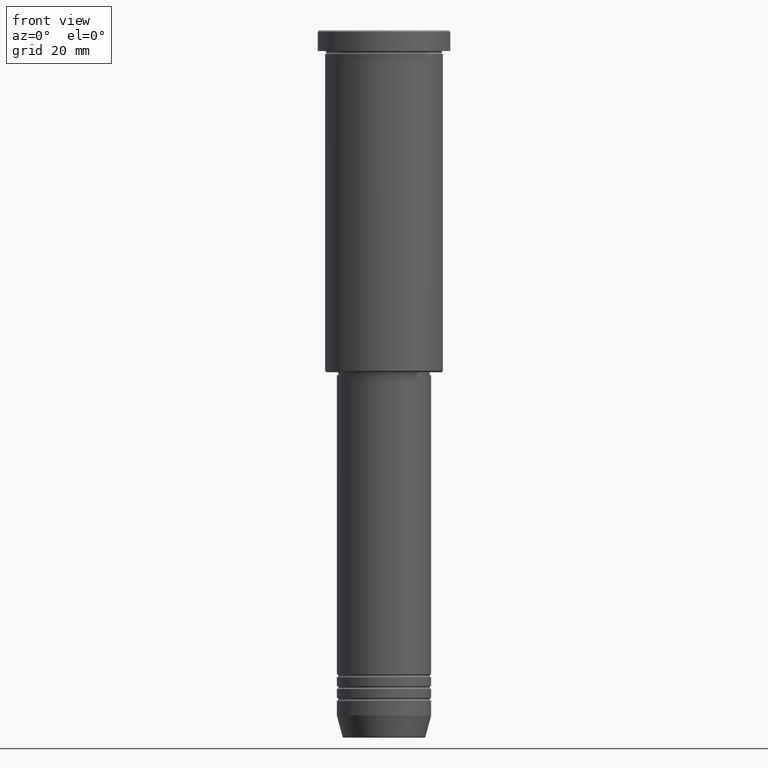
[diagram: clean part render]
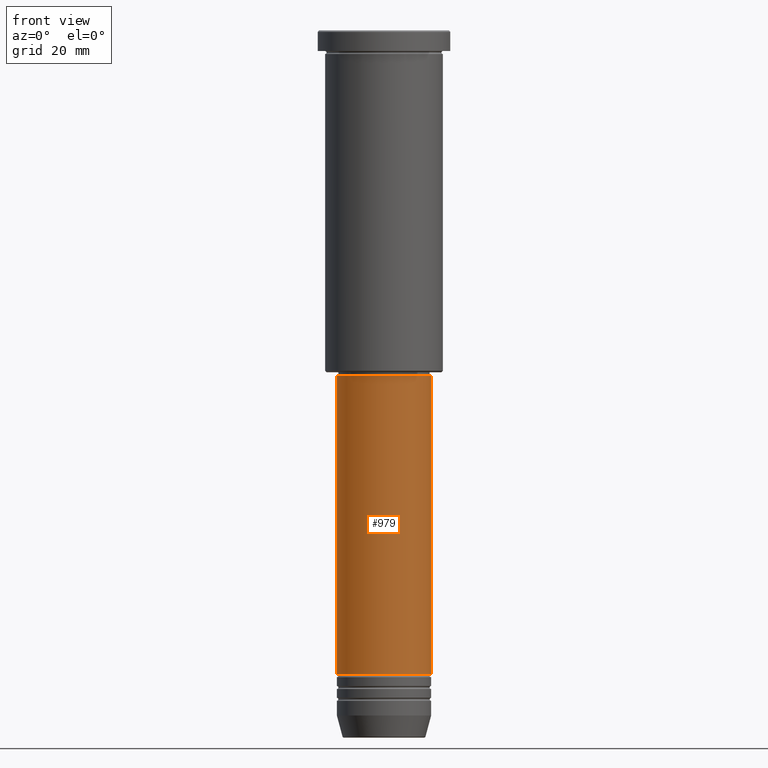
[diagram: same view with one face highlighted and labeled with its STEP entity id]
A machine part, front view. The second image highlights one B-rep face of the part: STEP entity #979.
In plain terms, the highlighted cylindrical surface (partial cylindrical patch) has radius 16 mm, axis along (-0, -0, 1).
Its self-contained STEP definition (entity closure, byte-faithful):
#19 = DIRECTION ( 'NONE',  ( -0.000000000000000000, -0.000000000000000000, 1.000000000000000000 ) ) ;
#36 = LINE ( 'NONE', #214, #765 ) ;
#46 = CARTESIAN_POINT ( 'NONE',  ( 0.000000000000000000, 0.000000000000000000, 0.000000000000000000 ) ) ;
#47 = DIRECTION ( 'NONE',  ( -0.000000000000000000, -0.000000000000000000, 1.000000000000000000 ) ) ;
#100 = VERTEX_POINT ( 'NONE', #1014 ) ;
#104 = AXIS2_PLACEMENT_3D ( 'NONE', #775, #575, #590 ) ;
#118 = DIRECTION ( 'NONE',  ( -0.000000000000000000, -0.000000000000000000, 1.000000000000000000 ) ) ;
#137 = EDGE_CURVE ( 'NONE', #100, #745, #707, .T. ) ;
#143 = LINE ( 'NONE', #511, #1061 ) ;
#184 = ORIENTED_EDGE ( 'NONE', *, *, #615, .F. ) ;
#214 = CARTESIAN_POINT ( 'NONE',  ( 16.00000000000000000, 0.000000000000000000, 0.000000000000000000 ) ) ;
#215 = CARTESIAN_POINT ( 'NONE',  ( 0.000000000000000000, 0.000000000000000000, -218.5000000000000000 ) ) ;
#239 = FACE_OUTER_BOUND ( 'NONE', #456, .T. ) ;
#245 = CARTESIAN_POINT ( 'NONE',  ( 16.00000000000000000, 0.000000000000000000, -218.5000000000000000 ) ) ;
#292 = AXIS2_PLACEMENT_3D ( 'NONE', #46, #602, #957 ) ;
#340 = DIRECTION ( 'NONE',  ( 1.000000000000000000, 0.000000000000000000, 0.000000000000000000 ) ) ;
#417 = CARTESIAN_POINT ( 'NONE',  ( -16.00000000000000000, 1.959434878635765131E-15, -218.5000000000000000 ) ) ;
#456 = EDGE_LOOP ( 'NONE', ( #184, #465, #965, #1027 ) ) ;
#465 = ORIENTED_EDGE ( 'NONE', *, *, #530, .T. ) ;
#511 = CARTESIAN_POINT ( 'NONE',  ( -16.00000000000000000, 1.959434878635765131E-15, 0.000000000000000000 ) ) ;
#530 = EDGE_CURVE ( 'NONE', #537, #557, #960, .T. ) ;
#537 = VERTEX_POINT ( 'NONE', #417 ) ;
#543 = CARTESIAN_POINT ( 'NONE',  ( 16.00000000000000000, 0.000000000000000000, -117.0000000000000142 ) ) ;
#557 = VERTEX_POINT ( 'NONE', #245 ) ;
#575 = DIRECTION ( 'NONE',  ( -0.000000000000000000, -0.000000000000000000, 1.000000000000000000 ) ) ;
#590 = DIRECTION ( 'NONE',  ( 1.000000000000000000, 0.000000000000000000, 0.000000000000000000 ) ) ;
#602 = DIRECTION ( 'NONE',  ( -0.000000000000000000, -0.000000000000000000, 1.000000000000000000 ) ) ;
#615 = EDGE_CURVE ( 'NONE', #537, #100, #143, .T. ) ;
#707 = CIRCLE ( 'NONE', #104, 16.00000000000000000 ) ;
#745 = VERTEX_POINT ( 'NONE', #543 ) ;
#765 = VECTOR ( 'NONE', #19, 1000.000000000000000 ) ;
#775 = CARTESIAN_POINT ( 'NONE',  ( 0.000000000000000000, 0.000000000000000000, -117.0000000000000142 ) ) ;
#838 = CYLINDRICAL_SURFACE ( 'NONE', #292, 16.00000000000000000 ) ;
#957 = DIRECTION ( 'NONE',  ( 1.000000000000000000, 0.000000000000000000, 0.000000000000000000 ) ) ;
#960 = CIRCLE ( 'NONE', #1182, 16.00000000000000000 ) ;
#965 = ORIENTED_EDGE ( 'NONE', *, *, #977, .T. ) ;
#977 = EDGE_CURVE ( 'NONE', #557, #745, #36, .T. ) ;
#979 = ADVANCED_FACE ( 'NONE', ( #239 ), #838, .T. ) ;
#1014 = CARTESIAN_POINT ( 'NONE',  ( -16.00000000000000000, 1.959434878635765131E-15, -117.0000000000000142 ) ) ;
#1027 = ORIENTED_EDGE ( 'NONE', *, *, #137, .F. ) ;
#1061 = VECTOR ( 'NONE', #47, 1000.000000000000000 ) ;
#1182 = AXIS2_PLACEMENT_3D ( 'NONE', #215, #118, #340 ) ;